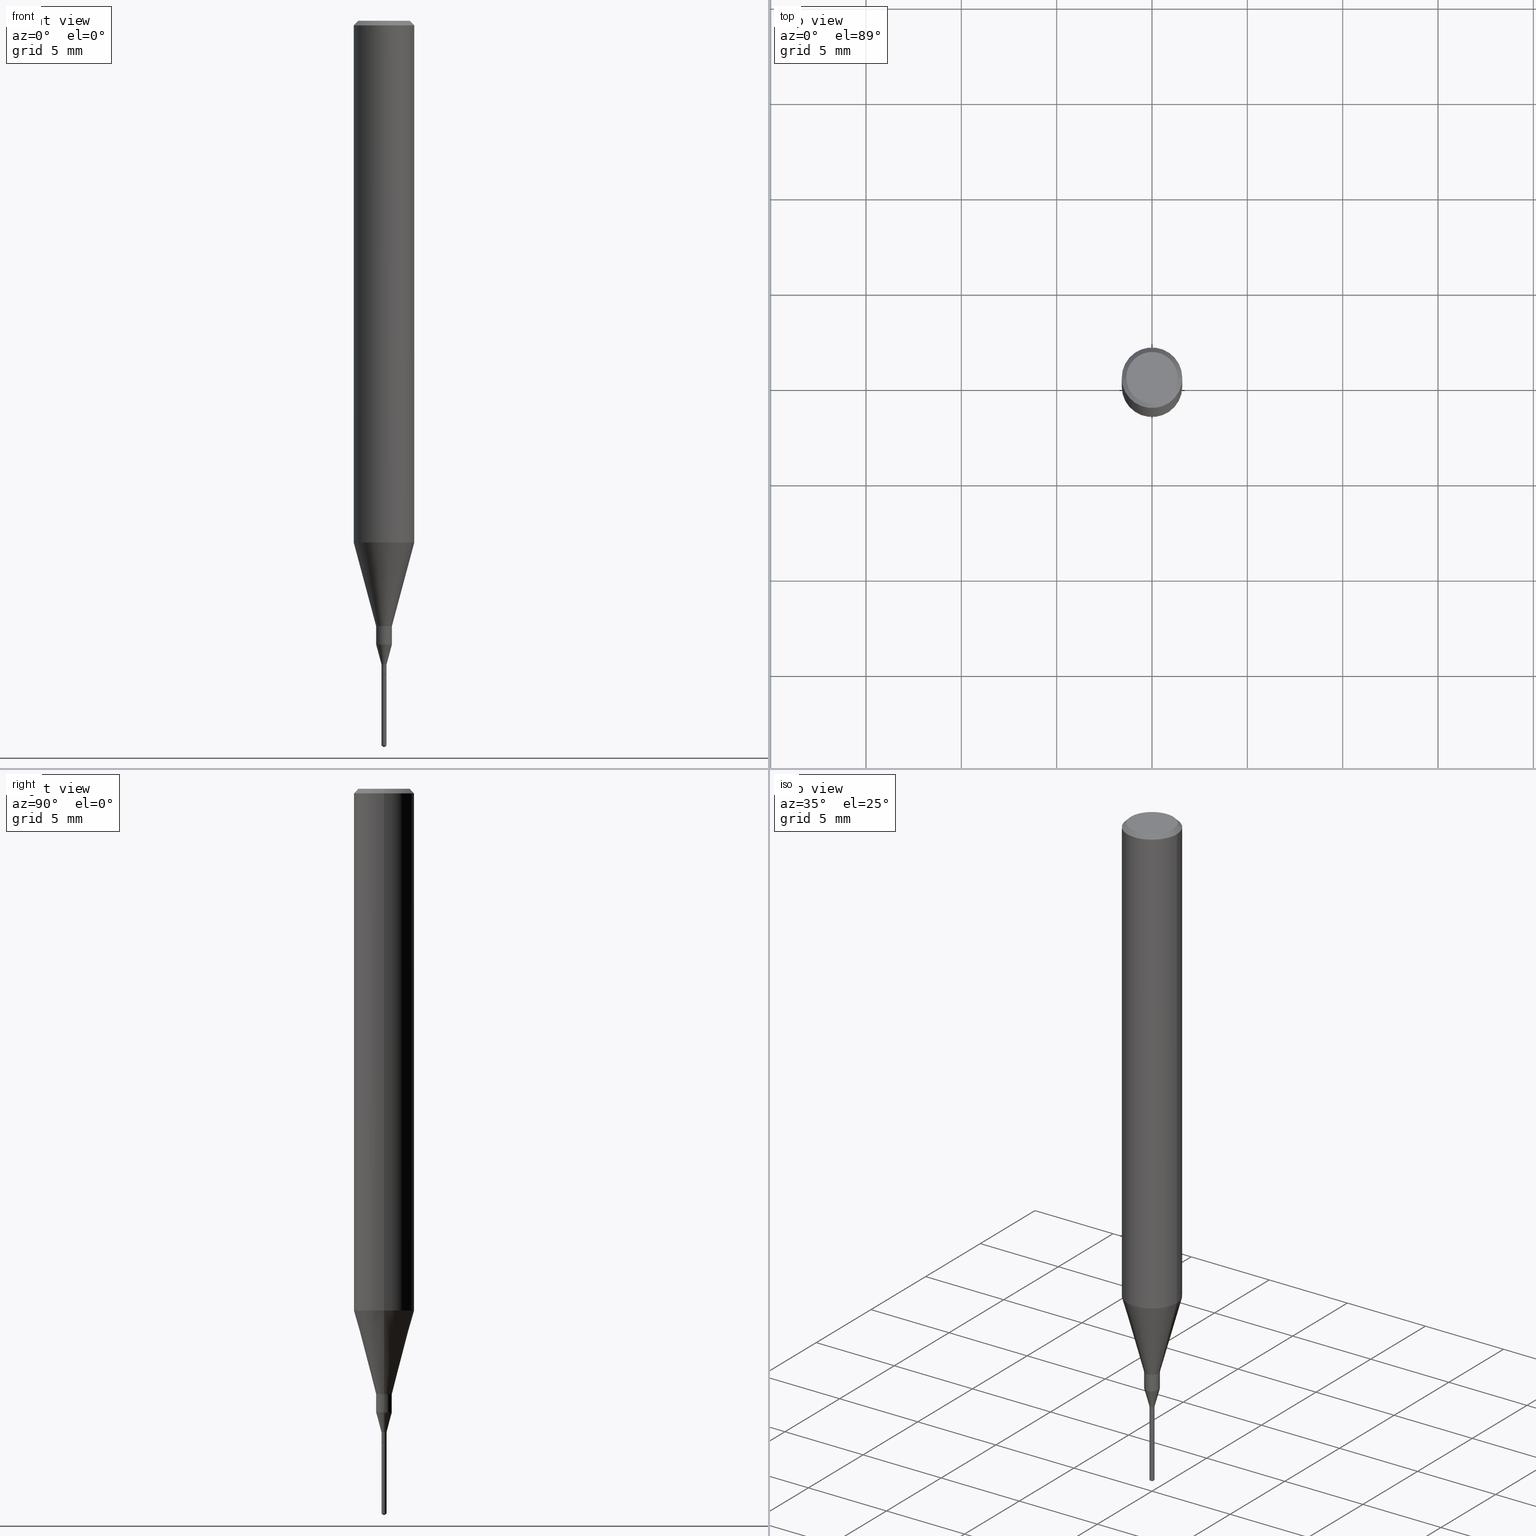
[diagram: canonical four-view strip — front | top / right | iso, engineering-drawing reading convention]
A machine part, canonical four-view strip (front | top / right | iso — engineering-drawing reading convention). The complete STEP part file that produces these views, byte-faithful:
ISO-10303-21;
HEADER;
FILE_DESCRIPTION (( 'STEP AP203' ),
    '1' );
FILE_NAME ('07260.STEP',
    '2024-04-19T13:30:29',
    ( '' ),
    ( '' ),
    'SwSTEP 2.0',
    'SolidWorks 2023',
    '' );
FILE_SCHEMA (( 'CONFIG_CONTROL_DESIGN' ));
ENDSEC;

DATA;
#1 =( NAMED_UNIT ( * ) SI_UNIT ( $, .STERADIAN. ) SOLID_ANGLE_UNIT ( ) );
#2 = EDGE_CURVE ( 'NONE', #54, #312, #493, .T. ) ;
#3 = ORIENTED_EDGE ( 'NONE', *, *, #508, .F. ) ;
#4 = DIRECTION ( 'NONE',  ( -0.2588190451025214611, 5.211531920934551042E-15, 0.9659258262890682012 ) ) ;
#5 = EDGE_CURVE ( 'NONE', #274, #185, #248, .T. ) ;
#6 = MECHANICAL_CONTEXT ( 'NONE', #104, 'mechanical' ) ;
#7 = ORIENTED_EDGE ( 'NONE', *, *, #427, .F. ) ;
#8 = AXIS2_PLACEMENT_3D ( 'NONE', #480, #213, #121 ) ;
#9 = CONICAL_SURFACE ( 'NONE', #433, 0.06250000000000000000, 0.7853981633974453924 ) ;
#10 = ADVANCED_FACE ( 'NONE', ( #339 ), #87, .T. ) ;
#11 = COORDINATED_UNIVERSAL_TIME_OFFSET ( 5, 0, .BEHIND. ) ;
#12 = ORIENTED_EDGE ( 'NONE', *, *, #84, .F. ) ;
#13 = DIRECTION ( 'NONE',  ( 1.000000000000000000, -6.982962677686274599E-15, 0.000000000000000000 ) ) ;
#14 = APPROVAL_STATUS ( 'not_yet_approved' ) ;
#15 = ORIENTED_EDGE ( 'NONE', *, *, #52, .T. ) ;
#16 = FACE_OUTER_BOUND ( 'NONE', #313, .T. ) ;
#17 = DIRECTION ( 'NONE',  ( -2.445468806185136597E-29, 3.491481338843145583E-15, 1.000000000000000000 ) ) ;
#18 = ADVANCED_FACE ( 'NONE', ( #239 ), #201, .T. ) ;
#19 = CARTESIAN_POINT ( 'NONE',  ( 0.000000000000000000, 0.000000000000000000, 0.000000000000000000 ) ) ;
#20 = ORIENTED_EDGE ( 'NONE', *, *, #338, .F. ) ;
#21 = DIRECTION ( 'NONE',  ( 0.7071067811866248443, -2.468850131083066826E-15, 0.7071067811864701902 ) ) ;
#22 = ADVANCED_FACE ( 'NONE', ( #566 ), #64, .T. ) ;
#23 = ADVANCED_FACE ( 'NONE', ( #108 ), #92, .T. ) ;
#24 = CIRCLE ( 'NONE', #552, 0.005250000000000001193 ) ;
#25 = CARTESIAN_POINT ( 'NONE',  ( 0.01625000000000000056, -4.610317599582291030E-15, -1.287947441116742864 ) ) ;
#26 = CARTESIAN_POINT ( 'NONE',  ( -0.06250000000000012490, -3.317607122755211895E-15, -1.077392650149939346 ) ) ;
#27 = ORIENTED_EDGE ( 'NONE', *, *, #532, .T. ) ;
#28 = CARTESIAN_POINT ( 'NONE',  ( -0.01625000000000000056, -4.381381261508872379E-15, -1.287947441116742864 ) ) ;
#29 = PLANE ( 'NONE',  #443 ) ;
#30 = ORIENTED_EDGE ( 'NONE', *, *, #294, .T. ) ;
#31 = ORIENTED_EDGE ( 'NONE', *, *, #371, .F. ) ;
#32 = DIRECTION ( 'NONE',  ( -2.445468806185136597E-29, 3.491481338843145583E-15, 1.000000000000000000 ) ) ;
#33 = CONICAL_SURFACE ( 'NONE', #205, 0.004750000000000000749, 0.7853981633975576360 ) ;
#34 = CIRCLE ( 'NONE', #180, 0.005250000000000001193 ) ;
#35 = DIRECTION ( 'NONE',  ( -2.445468806185136597E-29, 3.491481338843145583E-15, 1.000000000000000000 ) ) ;
#36 = DIRECTION ( 'NONE',  ( 1.000000000000000000, -6.982962677686264344E-15, 0.000000000000000000 ) ) ;
#37 = PLANE ( 'NONE',  #263 ) ;
#38 = LINE ( 'NONE', #442, #252 ) ;
#39 = EDGE_CURVE ( 'NONE', #258, #584, #432, .T. ) ;
#40 = AXIS2_PLACEMENT_3D ( 'NONE', #153, #335, #291 ) ;
#41 = CIRCLE ( 'NONE', #456, 0.01625000000000000056 ) ;
#42 = DIRECTION ( 'NONE',  ( -6.982962677686265133E-15, -1.000000000000000000, 0.000000000000000000 ) ) ;
#43 = APPLICATION_PROTOCOL_DEFINITION ( 'international standard', 'config_control_design', 1994, #104 ) ;
#44 = DIRECTION ( 'NONE',  ( -2.449828643397946418E-29, 3.485237803807878340E-15, 1.000000000000000000 ) ) ;
#45 = CIRCLE ( 'NONE', #314, 0.005250000000000100940 ) ;
#46 = AXIS2_PLACEMENT_3D ( 'NONE', #177, #266, #457 ) ;
#47 = CARTESIAN_POINT ( 'NONE',  ( 0.05312499999999999861, -4.129888592719939842E-16, -5.787680772767651417E-18 ) ) ;
#48 = LINE ( 'NONE', #236, #512 ) ;
#49 = CALENDAR_DATE ( 2024, 19, 4 ) ;
#50 = DIRECTION ( 'NONE',  ( -6.982962677686265133E-15, -1.000000000000000000, 0.000000000000000000 ) ) ;
#51 = CARTESIAN_POINT ( 'NONE',  ( 0.000000000000000000, 0.000000000000000000, 0.000000000000000000 ) ) ;
#52 = EDGE_CURVE ( 'NONE', #295, #356, #420, .T. ) ;
#53 = PERSON_AND_ORGANIZATION ( #408, #453 ) ;
#54 = VERTEX_POINT ( 'NONE', #207 ) ;
#55 = DIRECTION ( 'NONE',  ( -2.445468806185136597E-29, 3.491481338843145583E-15, 1.000000000000000000 ) ) ;
#56 = FACE_OUTER_BOUND ( 'NONE', #573, .T. ) ;
#57 = AXIS2_PLACEMENT_3D ( 'NONE', #230, #221, #353 ) ;
#58 = PERSON_AND_ORGANIZATION ( #408, #453 ) ;
#59 = CARTESIAN_POINT ( 'NONE',  ( 0.005250000000000054970, -3.666055405785328825E-17, 2.559992807292892898E-31 ) ) ;
#60 = DIRECTION ( 'NONE',  ( 1.000000000000000000, -6.982962677686264344E-15, 0.000000000000000000 ) ) ;
#61 = VERTEX_POINT ( 'NONE', #383 ) ;
#62 = DIRECTION ( 'NONE',  ( 0.2588190451025216277, 1.565188264969619995E-15, 0.9659258262890679791 ) ) ;
#63 = ADVANCED_FACE ( 'NONE', ( #56 ), #33, .T. ) ;
#64 = CYLINDRICAL_SURFACE ( 'NONE', #66, 0.06250000000000006939 ) ;
#65 = LOCAL_TIME ( 9, 30, 29.00000000000000000, #192 ) ;
#66 = AXIS2_PLACEMENT_3D ( 'NONE', #51, #249, #286 ) ;
#67 = AXIS2_PLACEMENT_3D ( 'NONE', #403, #360, #494 ) ;
#68 = EDGE_LOOP ( 'NONE', ( #183, #557, #542 ) ) ;
#69 = CARTESIAN_POINT ( 'NONE',  ( 3.301382888349935078E-29, -4.713499807438246596E-15, -1.350000000000000089 ) ) ;
#70 = CARTESIAN_POINT ( 'NONE',  ( 0.01624999999999999709, -1.134731435124018242E-16, 7.923787260668394963E-31 ) ) ;
#71 = ORIENTED_EDGE ( 'NONE', *, *, #189, .F. ) ;
#72 = ORIENTED_EDGE ( 'NONE', *, *, #447, .F. ) ;
#73 = CYLINDRICAL_SURFACE ( 'NONE', #401, 0.005250000000000001193 ) ;
#74 = APPROVAL ( #470, 'UNSPECIFIED' ) ;
#75 = FACE_OUTER_BOUND ( 'NONE', #300, .T. ) ;
#76 = CIRCLE ( 'NONE', #411, 0.01625000000000000056 ) ;
#77 = VECTOR ( 'NONE', #562, 39.37007874015747433 ) ;
#78 = CARTESIAN_POINT ( 'NONE',  ( 3.149635291256962736E-29, -4.496844456069888565E-15, -1.287947441116742864 ) ) ;
#79 = DIRECTION ( 'NONE',  ( -2.445468806185136597E-29, 3.491481338843145583E-15, 1.000000000000000000 ) ) ;
#80 = CARTESIAN_POINT ( 'NONE',  ( -0.005250000000000100940, -4.638662889418277990E-15, -1.328999999999999959 ) ) ;
#81 = EDGE_CURVE ( 'NONE', #292, #503, #545, .T. ) ;
#82 = LINE ( 'NONE', #70, #336 ) ;
#83 = ORIENTED_EDGE ( 'NONE', *, *, #294, .F. ) ;
#84 = EDGE_CURVE ( 'NONE', #584, #258, #45, .T. ) ;
#85 = CYLINDRICAL_SURFACE ( 'NONE', #57, 0.005250000000000054970 ) ;
#86 = ORIENTED_EDGE ( 'NONE', *, *, #380, .F. ) ;
#87 = CONICAL_SURFACE ( 'NONE', #580, 65.52281426576405465, 1.029744258676625002 ) ;
#88 =( CONVERSION_BASED_UNIT ( 'INCH', #455 ) LENGTH_UNIT ( ) NAMED_UNIT ( #473 ) );
#89 = VECTOR ( 'NONE', #479, 39.37007874015748143 ) ;
#90 = FACE_OUTER_BOUND ( 'NONE', #130, .T. ) ;
#91 = DIRECTION ( 'NONE',  ( -0.2588190451025216277, 5.211531920934551831E-15, 0.9659258262890679791 ) ) ;
#92 = CONICAL_SURFACE ( 'NONE', #491, 0.06250000000000012490, 0.2617993877991501295 ) ;
#93 = VECTOR ( 'NONE', #91, 39.37007874015748143 ) ;
#94 = SECURITY_CLASSIFICATION_LEVEL ( 'unclassified' ) ;
#95 = DIRECTION ( 'NONE',  ( -2.445468806185136597E-29, 3.491481338843145583E-15, 1.000000000000000000 ) ) ;
#96 = ADVANCED_FACE ( 'NONE', ( #172 ), #29, .F. ) ;
#97 = PERSON_AND_ORGANIZATION ( #408, #453 ) ;
#98 = CARTESIAN_POINT ( 'NONE',  ( 7.076796394983739835E-47, -1.010378970665454992E-32, -2.893840386385196200E-18 ) ) ;
#99 = DIRECTION ( 'NONE',  ( -2.445468806185136597E-29, 3.491481338843145583E-15, 1.000000000000000000 ) ) ;
#100 = EDGE_CURVE ( 'NONE', #202, #303, #578, .T. ) ;
#101 = EDGE_CURVE ( 'NONE', #503, #292, #223, .T. ) ;
#102 = PERSON_AND_ORGANIZATION ( #408, #453 ) ;
#103 = DIRECTION ( 'NONE',  ( 1.000000000000000000, -6.982962677686258033E-15, 0.000000000000000000 ) ) ;
#104 = APPLICATION_CONTEXT ( 'configuration controlled 3d designs of mechanical parts and assemblies' ) ;
#105 = PERSON_AND_ORGANIZATION ( #408, #453 ) ;
#106 = ADVANCED_FACE ( 'NONE', ( #541 ), #499, .T. ) ;
#107 = FACE_OUTER_BOUND ( 'NONE', #579, .T. ) ;
#108 = FACE_OUTER_BOUND ( 'NONE', #381, .T. ) ;
#109 = ADVANCED_BREP_SHAPE_REPRESENTATION ( '07260', ( #407, #405, #370 ), #345 ) ;
#110 = DIRECTION ( 'NONE',  ( -6.982962677686265922E-15, -1.000000000000000000, 0.000000000000000000 ) ) ;
#111 = ORIENTED_EDGE ( 'NONE', *, *, #389, .T. ) ;
#112 = CARTESIAN_POINT ( 'NONE',  ( 3.301382888349935078E-29, -4.713499807438246596E-15, -1.350000000000000089 ) ) ;
#113 = ORIENTED_EDGE ( 'NONE', *, *, #174, .F. ) ;
#114 = FACE_OUTER_BOUND ( 'NONE', #346, .T. ) ;
#115 = ORIENTED_EDGE ( 'NONE', *, *, #397, .F. ) ;
#116 = FACE_OUTER_BOUND ( 'NONE', #220, .T. ) ;
#117 = DIRECTION ( 'NONE',  ( 1.000000000000000000, -6.982962677686267499E-15, 4.876176775795935232E-29 ) ) ;
#118 = EDGE_CURVE ( 'NONE', #340, #303, #262, .T. ) ;
#119 = CARTESIAN_POINT ( 'NONE',  ( 0.000000000000000000, 0.000000000000000000, 0.000000000000000000 ) ) ;
#120 = DIRECTION ( 'NONE',  ( -5.985567269335837150E-15, -0.8571673007020953472, 0.5150380749100824662 ) ) ;
#121 = DIRECTION ( 'NONE',  ( 1.000000000000000000, -6.982962677686266711E-15, 4.875930095424100059E-29 ) ) ;
#122 = ORIENTED_EDGE ( 'NONE', *, *, #189, .T. ) ;
#123 = AXIS2_PLACEMENT_3D ( 'NONE', #194, #462, #280 ) ;
#124 = AXIS2_PLACEMENT_3D ( 'NONE', #438, #162, #290 ) ;
#125 = DIRECTION ( 'NONE',  ( -0.7071067811865454633, 2.468850131082235367E-15, -0.7071067811865495711 ) ) ;
#126 = DIRECTION ( 'NONE',  ( -2.445468806185136597E-29, 3.491481338843145583E-15, 1.000000000000000000 ) ) ;
#127 = ADVANCED_FACE ( 'NONE', ( #440 ), #73, .T. ) ;
#128 = CARTESIAN_POINT ( 'NONE',  ( -0.05312499999999999861, 3.873362110279099094E-16, -5.787680772773044021E-18 ) ) ;
#129 = ORIENTED_EDGE ( 'NONE', *, *, #100, .T. ) ;
#130 = EDGE_LOOP ( 'NONE', ( #396, #111, #350, #214 ) ) ;
#131 = CIRCLE ( 'NONE', #145, 0.06250000000000012490 ) ;
#132 = DIRECTION ( 'NONE',  ( 1.000000000000000000, -6.982962677686264344E-15, 0.000000000000000000 ) ) ;
#133 = ORIENTED_EDGE ( 'NONE', *, *, #380, .T. ) ;
#134 = AXIS2_PLACEMENT_3D ( 'NONE', #378, #568, #50 ) ;
#135 = CC_DESIGN_PERSON_AND_ORGANIZATION_ASSIGNMENT ( #414, #513, ( #154 ) ) ;
#136 =( LENGTH_UNIT ( ) NAMED_UNIT ( * ) SI_UNIT ( $, .METRE. ) );
#137 = PERSON_AND_ORGANIZATION_ROLE ( 'creator' ) ;
#138 = ORIENTED_EDGE ( 'NONE', *, *, #118, .T. ) ;
#139 = CARTESIAN_POINT ( 'NONE',  ( -3.666055405781629191E-17, -0.005250000000005225313, -1.496845481750105122 ) ) ;
#140 = EDGE_CURVE ( 'NONE', #268, #295, #38, .T. ) ;
#141 = ORIENTED_EDGE ( 'NONE', *, *, #508, .T. ) ;
#142 = EDGE_CURVE ( 'NONE', #519, #255, #240, .T. ) ;
#143 = FACE_OUTER_BOUND ( 'NONE', #209, .T. ) ;
#144 = CC_DESIGN_APPROVAL ( #469, ( #154 ) ) ;
#145 = AXIS2_PLACEMENT_3D ( 'NONE', #536, #35, #399 ) ;
#146 = AXIS2_PLACEMENT_3D ( 'NONE', #417, #375, #110 ) ;
#147 = ORIENTED_EDGE ( 'NONE', *, *, #269, .T. ) ;
#148 = FACE_OUTER_BOUND ( 'NONE', #178, .T. ) ;
#149 = DIRECTION ( 'NONE',  ( -2.445468806185136597E-29, 3.491481338843145583E-15, 1.000000000000000000 ) ) ;
#150 = CYLINDRICAL_SURFACE ( 'NONE', #134, 0.005250000000000001193 ) ;
#151 = COORDINATED_UNIVERSAL_TIME_OFFSET ( 5, 0, .BEHIND. ) ;
#152 = DIRECTION ( 'NONE',  ( -2.445468806185136597E-29, 3.491481338843145583E-15, 1.000000000000000000 ) ) ;
#153 = CARTESIAN_POINT ( 'NONE',  ( 3.056836007731421306E-29, -4.364351673553932471E-15, -1.250000000000000000 ) ) ;
#154 = PRODUCT_DEFINITION_FORMATION_WITH_SPECIFIED_SOURCE ( 'ANY', '', #423, .NOT_KNOWN. ) ;
#155 = CC_DESIGN_DATE_AND_TIME_ASSIGNMENT ( #278, #319, ( #572 ) ) ;
#156 = CIRCLE ( 'NONE', #67, 0.004750000000000000749 ) ;
#157 = DIRECTION ( 'NONE',  ( -2.445468806185136877E-29, 3.491481338843145188E-15, 1.000000000000000000 ) ) ;
#158 = ORIENTED_EDGE ( 'NONE', *, *, #447, .T. ) ;
#159 = LINE ( 'NONE', #530, #89 ) ;
#160 = CARTESIAN_POINT ( 'NONE',  ( 2.292627005798581061E-31, -3.273263755165471417E-17, -0.009375000000000063838 ) ) ;
#161 = PRODUCT_DEFINITION_SHAPE ( 'NONE', 'NONE',  #572 ) ;
#162 = DIRECTION ( 'NONE',  ( 2.445468806185136597E-29, -3.491481338843145583E-15, -1.000000000000000000 ) ) ;
#163 = ORIENTED_EDGE ( 'NONE', *, *, #101, .F. ) ;
#164 = CARTESIAN_POINT ( 'NONE',  ( 3.301382888349935078E-29, -4.713499807438246596E-15, -1.350000000000000089 ) ) ;
#165 = EDGE_CURVE ( 'NONE', #54, #274, #131, .T. ) ;
#166 = EDGE_LOOP ( 'NONE', ( #548, #190, #528, #31 ) ) ;
#167 = AXIS2_PLACEMENT_3D ( 'NONE', #575, #99, #281 ) ;
#168 = CIRCLE ( 'NONE', #146, 0.005249999999999999459 ) ;
#169 = EDGE_LOOP ( 'NONE', ( #229, #15, #477, #12 ) ) ;
#170 = LINE ( 'NONE', #257, #492 ) ;
#171 = ORIENTED_EDGE ( 'NONE', *, *, #228, .F. ) ;
#172 = FACE_OUTER_BOUND ( 'NONE', #428, .T. ) ;
#173 = ORIENTED_EDGE ( 'NONE', *, *, #81, .F. ) ;
#174 = EDGE_CURVE ( 'NONE', #312, #185, #465, .T. ) ;
#175 = EDGE_CURVE ( 'NONE', #471, #496, #76, .T. ) ;
#176 =( NAMED_UNIT ( * ) PLANE_ANGLE_UNIT ( ) SI_UNIT ( $, .RADIAN. ) );
#177 = CARTESIAN_POINT ( 'NONE',  ( 3.301382888349935078E-29, -4.713499807438246596E-15, -1.350000000000000089 ) ) ;
#178 = EDGE_LOOP ( 'NONE', ( #317, #391, #163, #171 ) ) ;
#179 = AXIS2_PLACEMENT_3D ( 'NONE', #264, #126, #308 ) ;
#180 = AXIS2_PLACEMENT_3D ( 'NONE', #354, #436, #296 ) ;
#181 = CARTESIAN_POINT ( 'NONE',  ( 3.301382888349935078E-29, -4.713499807438246596E-15, -1.350000000000000089 ) ) ;
#182 = CARTESIAN_POINT ( 'NONE',  ( 3.730349362744188864E-17, 0.005249999999995287082, -1.350000000000000089 ) ) ;
#183 = ORIENTED_EDGE ( 'NONE', *, *, #100, .F. ) ;
#184 = FACE_OUTER_BOUND ( 'NONE', #366, .T. ) ;
#185 = VERTEX_POINT ( 'NONE', #341 ) ;
#186 = VECTOR ( 'NONE', #21, 39.37007874015748143 ) ;
#187 = DATE_AND_TIME ( #288, #590 ) ;
#188 = CC_DESIGN_PERSON_AND_ORGANIZATION_ASSIGNMENT ( #58, #376, ( #510 ) ) ;
#189 = EDGE_CURVE ( 'NONE', #255, #519, #402, .T. ) ;
#190 = ORIENTED_EDGE ( 'NONE', *, *, #538, .T. ) ;
#191 = CARTESIAN_POINT ( 'NONE',  ( -0.01624999999999999709, -4.315134870250894333E-15, -1.250000000000000000 ) ) ;
#192 = COORDINATED_UNIVERSAL_TIME_OFFSET ( 5, 0, .BEHIND. ) ;
#193 = CARTESIAN_POINT ( 'NONE',  ( 0.06250000000000000000, -4.691678049070463404E-16, -0.009375000000000063838 ) ) ;
#194 = CARTESIAN_POINT ( 'NONE',  ( 0.000000000000000000, 0.000000000000000000, 0.000000000000000000 ) ) ;
#195 = VECTOR ( 'NONE', #372, 39.37007874015748143 ) ;
#196 = APPROVAL_PERSON_ORGANIZATION ( #418, #74, #526 ) ;
#197 = DIRECTION ( 'NONE',  ( -1.000000000000000000, 6.982962677686265922E-15, -4.876176775795935793E-29 ) ) ;
#198 = ORIENTED_EDGE ( 'NONE', *, *, #118, .F. ) ;
#199 = APPLICATION_CONTEXT ( 'configuration controlled 3d designs of mechanical parts and assemblies' ) ;
#200 = CARTESIAN_POINT ( 'NONE',  ( 0.01625000000000000056, -4.610317599582291030E-15, -1.287947441116742864 ) ) ;
#201 = CYLINDRICAL_SURFACE ( 'NONE', #123, 0.01624999999999999709 ) ;
#202 = VERTEX_POINT ( 'NONE', #495 ) ;
#203 = CARTESIAN_POINT ( 'NONE',  ( 0.06250000000000012490, -4.198131499960668153E-15, -1.077392650149939346 ) ) ;
#204 = DIRECTION ( 'NONE',  ( -2.445468806185136597E-29, 3.491481338843145583E-15, 1.000000000000000000 ) ) ;
#205 = AXIS2_PLACEMENT_3D ( 'NONE', #112, #426, #379 ) ;
#206 = VECTOR ( 'NONE', #244, 39.37007874015748143 ) ;
#207 = CARTESIAN_POINT ( 'NONE',  ( 0.06250000000000012490, -4.198131499960668153E-15, -1.077392650149939346 ) ) ;
#208 = APPROVAL ( #364, 'UNSPECIFIED' ) ;
#209 = EDGE_LOOP ( 'NONE', ( #86, #450, #30, #20 ) ) ;
#210 = ADVANCED_FACE ( 'NONE', ( #114 ), #525, .T. ) ;
#211 = DIRECTION ( 'NONE',  ( -2.445468806185136597E-29, 3.491481338843145583E-15, 1.000000000000000000 ) ) ;
#212 = ORIENTED_EDGE ( 'NONE', *, *, #505, .T. ) ;
#213 = DIRECTION ( 'NONE',  ( -2.445468806185136597E-29, 3.491481338843145583E-15, 1.000000000000000000 ) ) ;
#214 = ORIENTED_EDGE ( 'NONE', *, *, #416, .F. ) ;
#215 = ORIENTED_EDGE ( 'NONE', *, *, #532, .F. ) ;
#216 = DIRECTION ( 'NONE',  ( -2.445468806185136597E-29, 3.491481338843145583E-15, 1.000000000000000000 ) ) ;
#217 = ORIENTED_EDGE ( 'NONE', *, *, #5, .T. ) ;
#218 = EDGE_CURVE ( 'NONE', #413, #539, #34, .T. ) ;
#219 = FACE_OUTER_BOUND ( 'NONE', #169, .T. ) ;
#220 = EDGE_LOOP ( 'NONE', ( #563, #217, #113, #410 ) ) ;
#221 = DIRECTION ( 'NONE',  ( -2.445468806185136597E-29, 3.491481338843145583E-15, 1.000000000000000000 ) ) ;
#222 = DIRECTION ( 'NONE',  ( -2.449828643397946418E-29, 3.485237803807878340E-15, 1.000000000000000000 ) ) ;
#223 = CIRCLE ( 'NONE', #179, 0.01624999999999999709 ) ;
#224 = CC_DESIGN_SECURITY_CLASSIFICATION ( #510, ( #154 ) ) ;
#225 = CONICAL_SURFACE ( 'NONE', #46, 0.004750000000000000749, 0.7853981633975576360 ) ;
#226 = AXIS2_PLACEMENT_3D ( 'NONE', #387, #488, #385 ) ;
#227 = DIRECTION ( 'NONE',  ( 1.000000000000000000, 0.000000000000000000, 0.000000000000000000 ) ) ;
#228 = EDGE_CURVE ( 'NONE', #471, #503, #82, .T. ) ;
#229 = ORIENTED_EDGE ( 'NONE', *, *, #389, .F. ) ;
#230 = CARTESIAN_POINT ( 'NONE',  ( 0.000000000000000000, 0.000000000000000000, 0.000000000000000000 ) ) ;
#231 = PERSON_AND_ORGANIZATION_ROLE ( 'design_owner' ) ;
#232 = ORIENTED_EDGE ( 'NONE', *, *, #140, .T. ) ;
#233 = CONICAL_SURFACE ( 'NONE', #242, 0.01625000000000000056, 0.2617993877991502960 ) ;
#234 = EDGE_CURVE ( 'NONE', #202, #340, #170, .T. ) ;
#235 = CARTESIAN_POINT ( 'NONE',  ( 0.005250000000000100940, -4.676839253380394232E-15, -1.328999999999999959 ) ) ;
#236 = CARTESIAN_POINT ( 'NONE',  ( -0.01624999999999999709, 1.154631945610162595E-16, -7.993269521664220284E-31 ) ) ;
#237 = DATE_AND_TIME ( #49, #251 ) ;
#238 = FACE_OUTER_BOUND ( 'NONE', #352, .T. ) ;
#239 = FACE_OUTER_BOUND ( 'NONE', #246, .T. ) ;
#240 = CIRCLE ( 'NONE', #8, 0.05312499999999999861 ) ;
#241 = PLANE ( 'NONE',  #270 ) ;
#242 = AXIS2_PLACEMENT_3D ( 'NONE', #78, #445, #256 ) ;
#243 = APPROVAL_ROLE ( '' ) ;
#244 = DIRECTION ( 'NONE',  ( 0.7071067811865454633, -7.319954787623248157E-15, -0.7071067811865495711 ) ) ;
#245 = CARTESIAN_POINT ( 'NONE',  ( 3.250028043420046385E-29, -4.640178699322540290E-15, -1.328999999999999959 ) ) ;
#246 = EDGE_LOOP ( 'NONE', ( #115, #434, #534, #173 ) ) ;
#247 = DIRECTION ( 'NONE',  ( -2.445468806185136597E-29, 3.491481338843145583E-15, 1.000000000000000000 ) ) ;
#248 = LINE ( 'NONE', #331, #569 ) ;
#249 = DIRECTION ( 'NONE',  ( -2.445468806185136597E-29, 3.491481338843145583E-15, 1.000000000000000000 ) ) ;
#250 = ADVANCED_FACE ( 'NONE', ( #219 ), #587, .T. ) ;
#251 = LOCAL_TIME ( 9, 30, 29.00000000000000000, #325 ) ;
#252 = VECTOR ( 'NONE', #449, 39.37007874015748143 ) ;
#253 = VECTOR ( 'NONE', #125, 39.37007874015748143 ) ;
#254 = ADVANCED_FACE ( 'NONE', ( #75 ), #225, .T. ) ;
#255 = VERTEX_POINT ( 'NONE', #47 ) ;
#256 = DIRECTION ( 'NONE',  ( 1.000000000000000000, -6.982962677686258033E-15, 0.000000000000000000 ) ) ;
#257 = CARTESIAN_POINT ( 'NONE',  ( 3.662971404622334007E-29, -5.244714250307038079E-15, -1.500000000000000222 ) ) ;
#258 = VERTEX_POINT ( 'NONE', #235 ) ;
#259 = DIRECTION ( 'NONE',  ( -6.982962677686265133E-15, -1.000000000000000000, 0.000000000000000000 ) ) ;
#260 = ORIENTED_EDGE ( 'NONE', *, *, #39, .T. ) ;
#261 = DIRECTION ( 'NONE',  ( 6.090539988449671939E-15, 0.8571673007020987889, 0.5150380749100764710 ) ) ;
#262 = CIRCLE ( 'NONE', #511, 0.005249999999999999459 ) ;
#263 = AXIS2_PLACEMENT_3D ( 'NONE', #181, #309, #316 ) ;
#264 = CARTESIAN_POINT ( 'NONE',  ( 3.056836007731421306E-29, -4.364351673553932471E-15, -1.250000000000000000 ) ) ;
#265 = DIRECTION ( 'NONE',  ( 2.445468806185136597E-29, -3.491481338843145583E-15, -1.000000000000000000 ) ) ;
#266 = DIRECTION ( 'NONE',  ( -2.445468806185136597E-29, 3.491481338843145583E-15, 1.000000000000000000 ) ) ;
#267 = LINE ( 'NONE', #498, #582 ) ;
#268 = VERTEX_POINT ( 'NONE', #321 ) ;
#269 = EDGE_CURVE ( 'NONE', #303, #340, #168, .T. ) ;
#270 = AXIS2_PLACEMENT_3D ( 'NONE', #98, #461, #197 ) ;
#271 = LOCAL_TIME ( 9, 30, 29.00000000000000000, #151 ) ;
#272 = CARTESIAN_POINT ( 'NONE',  ( 0.000000000000000000, 0.000000000000000000, 0.000000000000000000 ) ) ;
#273 = DIRECTION ( 'NONE',  ( -2.445468806185136597E-29, 3.491481338843145583E-15, 1.000000000000000000 ) ) ;
#274 = VERTEX_POINT ( 'NONE', #26 ) ;
#275 = ADVANCED_FACE ( 'NONE', ( #576 ), #481, .T. ) ;
#276 = AXIS2_PLACEMENT_3D ( 'NONE', #327, #55, #13 ) ;
#277 = LINE ( 'NONE', #458, #195 ) ;
#278 = DATE_AND_TIME ( #365, #271 ) ;
#279 = DIRECTION ( 'NONE',  ( -2.445468806185136877E-29, 3.491481338843145188E-15, 1.000000000000000000 ) ) ;
#280 = DIRECTION ( 'NONE',  ( 1.000000000000000000, -6.982962677686267499E-15, 4.876176775795936353E-29 ) ) ;
#281 = DIRECTION ( 'NONE',  ( 1.000000000000000000, -6.982962677686274599E-15, 0.000000000000000000 ) ) ;
#282 = CALENDAR_DATE ( 2024, 19, 4 ) ;
#283 = ORIENTED_EDGE ( 'NONE', *, *, #142, .F. ) ;
#284 = AXIS2_PLACEMENT_3D ( 'NONE', #245, #149, #520 ) ;
#285 = LINE ( 'NONE', #509, #93 ) ;
#286 = DIRECTION ( 'NONE',  ( 1.000000000000000000, -6.982962677686266711E-15, 4.876176775795935793E-29 ) ) ;
#287 = CIRCLE ( 'NONE', #355, 0.06250000000000012490 ) ;
#288 = CALENDAR_DATE ( 2024, 19, 4 ) ;
#289 = ORIENTED_EDGE ( 'NONE', *, *, #318, .T. ) ;
#290 = DIRECTION ( 'NONE',  ( -1.000000000000000000, 6.982962677686266711E-15, 0.000000000000000000 ) ) ;
#291 = DIRECTION ( 'NONE',  ( 1.000000000000000000, -6.982962677686288799E-15, 0.000000000000000000 ) ) ;
#292 = VERTEX_POINT ( 'NONE', #191 ) ;
#293 = PRODUCT_RELATED_PRODUCT_CATEGORY ( 'detail', '', ( #423 ) ) ;
#294 = EDGE_CURVE ( 'NONE', #258, #471, #430, .T. ) ;
#295 = VERTEX_POINT ( 'NONE', #463 ) ;
#296 = DIRECTION ( 'NONE',  ( -6.982962677686265133E-15, -1.000000000000000000, 0.000000000000000000 ) ) ;
#297 = AXIS2_PLACEMENT_3D ( 'NONE', #585, #531, #446 ) ;
#298 = ORIENTED_EDGE ( 'NONE', *, *, #101, .T. ) ;
#299 = DIRECTION ( 'NONE',  ( 2.449828643397946138E-29, -3.485237803807878340E-15, -1.000000000000000000 ) ) ;
#300 = EDGE_LOOP ( 'NONE', ( #475, #342, #158, #437 ) ) ;
#301 = ORIENTED_EDGE ( 'NONE', *, *, #218, .F. ) ;
#302 = CARTESIAN_POINT ( 'NONE',  ( 0.000000000000000000, 0.000000000000000000, 0.000000000000000000 ) ) ;
#303 = VERTEX_POINT ( 'NONE', #558 ) ;
#304 = CARTESIAN_POINT ( 'NONE',  ( 3.149635291256962736E-29, -4.496844456069888565E-15, -1.287947441116742864 ) ) ;
#305 = AXIS2_PLACEMENT_3D ( 'NONE', #302, #211, #117 ) ;
#306 = DESIGN_CONTEXT ( 'detailed design', #199, 'design' ) ;
#307 = CARTESIAN_POINT ( 'NONE',  ( -3.666055405781988492E-17, -0.005250000000004714437, -1.350000000000000089 ) ) ;
#308 = DIRECTION ( 'NONE',  ( 1.000000000000000000, -6.982962677686288799E-15, 0.000000000000000000 ) ) ;
#309 = DIRECTION ( 'NONE',  ( -2.438088387897960049E-29, 3.491481338843145188E-15, 1.000000000000000000 ) ) ;
#310 = EDGE_LOOP ( 'NONE', ( #384, #129, #198 ) ) ;
#311 = CC_DESIGN_PERSON_AND_ORGANIZATION_ASSIGNMENT ( #521, #231, ( #423 ) ) ;
#312 = VERTEX_POINT ( 'NONE', #193 ) ;
#313 = EDGE_LOOP ( 'NONE', ( #358, #147, #141, #215 ) ) ;
#314 = AXIS2_PLACEMENT_3D ( 'NONE', #474, #204, #529 ) ;
#315 = VECTOR ( 'NONE', #44, 39.37007874015748143 ) ;
#316 = DIRECTION ( 'NONE',  ( 1.000000000000000000, -6.982962677686265922E-15, 4.876176775795935793E-29 ) ) ;
#317 = ORIENTED_EDGE ( 'NONE', *, *, #175, .T. ) ;
#318 = EDGE_CURVE ( 'NONE', #503, #54, #472, .T. ) ;
#319 = DATE_TIME_ROLE ( 'creation_date' ) ;
#320 = DIRECTION ( 'NONE',  ( 1.000000000000000000, -6.982962677686267499E-15, 4.876176775795936353E-29 ) ) ;
#321 = CARTESIAN_POINT ( 'NONE',  ( -0.004750000000000000749, -4.677099800315530409E-15, -1.350000000000000089 ) ) ;
#322 = ORIENTED_EDGE ( 'NONE', *, *, #553, .T. ) ;
#323 = CIRCLE ( 'NONE', #390, 0.004750000000000000749 ) ;
#324 = LINE ( 'NONE', #59, #570 ) ;
#325 = COORDINATED_UNIVERSAL_TIME_OFFSET ( 5, 0, .BEHIND. ) ;
#326 = ORIENTED_EDGE ( 'NONE', *, *, #555, .F. ) ;
#327 = CARTESIAN_POINT ( 'NONE',  ( 3.300160153946842277E-29, -4.711754066768825092E-15, -1.349500000000000144 ) ) ;
#328 = ADVANCED_FACE ( 'NONE', ( #148 ), #382, .T. ) ;
#329 = PERSON_AND_ORGANIZATION_ROLE ( 'creator' ) ;
#330 = CARTESIAN_POINT ( 'NONE',  ( 2.292627005798581061E-31, -3.273263755165471417E-17, -0.009375000000000063838 ) ) ;
#331 = CARTESIAN_POINT ( 'NONE',  ( -0.06250000000000006939, 4.440892098500631092E-16, -3.074334431409319267E-30 ) ) ;
#332 = APPROVAL_DATE_TIME ( #561, #208 ) ;
#333 = ADVANCED_FACE ( 'NONE', ( #16 ), #150, .T. ) ;
#334 = DIRECTION ( 'NONE',  ( 1.000000000000000000, -6.982962677686266711E-15, 0.000000000000000000 ) ) ;
#335 = DIRECTION ( 'NONE',  ( -2.445468806185136597E-29, 3.491481338843145583E-15, 1.000000000000000000 ) ) ;
#336 = VECTOR ( 'NONE', #583, 39.37007874015748143 ) ;
#337 = ORIENTED_EDGE ( 'NONE', *, *, #357, .F. ) ;
#338 = EDGE_CURVE ( 'NONE', #496, #471, #41, .T. ) ;
#339 = FACE_OUTER_BOUND ( 'NONE', #310, .T. ) ;
#340 = VERTEX_POINT ( 'NONE', #139 ) ;
#341 = CARTESIAN_POINT ( 'NONE',  ( -0.06250000000000000000, -1.453125275228401137E-15, -0.009375000000000063838 ) ) ;
#342 = ORIENTED_EDGE ( 'NONE', *, *, #555, .T. ) ;
#343 = DIRECTION ( 'NONE',  ( 1.000000000000000000, -6.982962677686266711E-15, 0.000000000000000000 ) ) ;
#344 = CLOSED_SHELL ( 'NONE', ( #127, #10, #106, #333, #96 ) ) ;
#345 =( GEOMETRIC_REPRESENTATION_CONTEXT ( 3 ) GLOBAL_UNCERTAINTY_ASSIGNED_CONTEXT ( ( #349 ) ) GLOBAL_UNIT_ASSIGNED_CONTEXT ( ( #88, #176, #1 ) ) REPRESENTATION_CONTEXT ( 'NONE', 'WORKASPACE' ) );
#346 = EDGE_LOOP ( 'NONE', ( #487, #577, #289, #377 ) ) ;
#347 = DIRECTION ( 'NONE',  ( 1.000000000000000000, -6.982962677686177569E-15, 0.000000000000000000 ) ) ;
#348 = CARTESIAN_POINT ( 'NONE',  ( 3.661129155694912763E-29, -5.225291231752093132E-15, -1.496845481750105122 ) ) ;
#349 = UNCERTAINTY_MEASURE_WITH_UNIT (LENGTH_MEASURE( 1.000000000000000082E-05 ), #88, 'distance_accuracy_value', 'NONE');
#350 = ORIENTED_EDGE ( 'NONE', *, *, #39, .F. ) ;
#351 = CARTESIAN_POINT ( 'NONE',  ( 3.674846187787069844E-29, -5.227856705711817904E-15, -1.500000000000000222 ) ) ;
#352 = EDGE_LOOP ( 'NONE', ( #452, #122 ) ) ;
#353 = DIRECTION ( 'NONE',  ( 1.000000000000000000, -6.982962677686267499E-15, 4.876176775795935232E-29 ) ) ;
#354 = CARTESIAN_POINT ( 'NONE',  ( 3.301382888349935078E-29, -4.713499807438246596E-15, -1.350000000000000089 ) ) ;
#355 = AXIS2_PLACEMENT_3D ( 'NONE', #543, #273, #132 ) ;
#356 = VERTEX_POINT ( 'NONE', #367 ) ;
#357 = EDGE_CURVE ( 'NONE', #255, #312, #422, .T. ) ;
#358 = ORIENTED_EDGE ( 'NONE', *, *, #482, .F. ) ;
#359 = ORIENTED_EDGE ( 'NONE', *, *, #490, .F. ) ;
#360 = DIRECTION ( 'NONE',  ( -2.445468806185136597E-29, 3.491481338843145583E-15, 1.000000000000000000 ) ) ;
#361 = AXIS2_PLACEMENT_3D ( 'NONE', #160, #79, #343 ) ;
#362 = AXIS2_PLACEMENT_3D ( 'NONE', #19, #419, #320 ) ;
#363 = LINE ( 'NONE', #307, #315 ) ;
#364 = APPROVAL_STATUS ( 'not_yet_approved' ) ;
#365 = CALENDAR_DATE ( 2024, 19, 4 ) ;
#366 = EDGE_LOOP ( 'NONE', ( #71, #441, #497, #514 ) ) ;
#367 = CARTESIAN_POINT ( 'NONE',  ( 0.005250000000000009000, -4.748414620826678245E-15, -1.349500000000000144 ) ) ;
#368 = CIRCLE ( 'NONE', #451, 0.06250000000000000000 ) ;
#369 = CALENDAR_DATE ( 2024, 19, 4 ) ;
#370 = AXIS2_PLACEMENT_3D ( 'NONE', #272, #454, #227 ) ;
#371 = EDGE_CURVE ( 'NONE', #185, #312, #368, .T. ) ;
#372 = DIRECTION ( 'NONE',  ( -2.445468806185136877E-29, 3.491481338843145188E-15, 1.000000000000000000 ) ) ;
#373 = LINE ( 'NONE', #565, #186 ) ;
#374 = DIRECTION ( 'NONE',  ( -2.445468806185136877E-29, 3.491481338843145188E-15, 1.000000000000000000 ) ) ;
#375 = DIRECTION ( 'NONE',  ( -2.449828643397946418E-29, 3.485237803807878340E-15, 1.000000000000000000 ) ) ;
#376 = PERSON_AND_ORGANIZATION_ROLE ( 'classification_officer' ) ;
#377 = ORIENTED_EDGE ( 'NONE', *, *, #538, .F. ) ;
#378 = CARTESIAN_POINT ( 'NONE',  ( 3.301382888349935078E-29, -4.713499807438246596E-15, -1.350000000000000089 ) ) ;
#379 = DIRECTION ( 'NONE',  ( 1.000000000000000000, -6.982962677686177569E-15, 0.000000000000000000 ) ) ;
#380 = EDGE_CURVE ( 'NONE', #584, #496, #285, .T. ) ;
#381 = EDGE_LOOP ( 'NONE', ( #298, #212, #571, #386 ) ) ;
#382 = CYLINDRICAL_SURFACE ( 'NONE', #362, 0.01624999999999999709 ) ;
#383 = CARTESIAN_POINT ( 'NONE',  ( 0.004750000000000000749, -4.746668880157255952E-15, -1.350000000000000089 ) ) ;
#384 = ORIENTED_EDGE ( 'NONE', *, *, #234, .F. ) ;
#385 = DIRECTION ( 'NONE',  ( 1.000000000000000000, -6.982962677686266711E-15, 4.875930095424100059E-29 ) ) ;
#386 = ORIENTED_EDGE ( 'NONE', *, *, #318, .F. ) ;
#387 = CARTESIAN_POINT ( 'NONE',  ( 1.415359278996747967E-46, -2.020757941330909984E-32, -5.787680772770392401E-18 ) ) ;
#388 = CLOSED_SHELL ( 'NONE', ( #549, #502, #23, #328, #459, #517, #63, #574, #254, #250, #444, #18, #210, #22, #275, #439 ) ) ;
#389 = EDGE_CURVE ( 'NONE', #295, #584, #277, .T. ) ;
#390 = AXIS2_PLACEMENT_3D ( 'NONE', #69, #435, #347 ) ;
#391 = ORIENTED_EDGE ( 'NONE', *, *, #397, .T. ) ;
#392 = CARTESIAN_POINT ( 'NONE',  ( 3.301382888349935078E-29, -4.713499807438246596E-15, -1.350000000000000089 ) ) ;
#393 = EDGE_LOOP ( 'NONE', ( #337, #283, #322, #550 ) ) ;
#394 = DIRECTION ( 'NONE',  ( -2.449828643397946418E-29, 3.485237803807878340E-15, 1.000000000000000000 ) ) ;
#395 = DIRECTION ( 'NONE',  ( 1.000000000000000000, -6.982962677686258033E-15, 0.000000000000000000 ) ) ;
#396 = ORIENTED_EDGE ( 'NONE', *, *, #427, .T. ) ;
#397 = EDGE_CURVE ( 'NONE', #496, #292, #48, .T. ) ;
#398 = CARTESIAN_POINT ( 'NONE',  ( 0.01624999999999999709, -4.477824817066334148E-15, -1.250000000000000000 ) ) ;
#399 = DIRECTION ( 'NONE',  ( 1.000000000000000000, -6.982962677686264344E-15, 0.000000000000000000 ) ) ;
#400 = CC_DESIGN_APPROVAL ( #208, ( #510 ) ) ;
#401 = AXIS2_PLACEMENT_3D ( 'NONE', #392, #222, #259 ) ;
#402 = CIRCLE ( 'NONE', #226, 0.05312499999999999861 ) ;
#403 = CARTESIAN_POINT ( 'NONE',  ( 3.301382888349935078E-29, -4.713499807438246596E-15, -1.350000000000000089 ) ) ;
#404 = EDGE_LOOP ( 'NONE', ( #138, #586, #301, #3 ) ) ;
#405 = MANIFOLD_SOLID_BREP ( 'Body-Move/Copy2[2]', #388 ) ;
#406 = FACE_OUTER_BOUND ( 'NONE', #483, .T. ) ;
#407 = MANIFOLD_SOLID_BREP ( 'Body-Move/Copy2[1]', #344 ) ;
#408 = PERSON ( 'UNSPECIFIED', 'UNSPECIFIED', 'UNSPECIFIED', ('UNSPECIFIED'), ('UNSPECIFIED'), ('UNSPECIFIED') ) ;
#409 = LINE ( 'NONE', #554, #253 ) ;
#410 = ORIENTED_EDGE ( 'NONE', *, *, #2, .F. ) ;
#411 = AXIS2_PLACEMENT_3D ( 'NONE', #304, #216, #395 ) ;
#412 = APPROVAL_DATE_TIME ( #567, #74 ) ;
#413 = VERTEX_POINT ( 'NONE', #527 ) ;
#414 = PERSON_AND_ORGANIZATION ( #408, #453 ) ;
#415 = DIRECTION ( 'NONE',  ( -2.445468806185136877E-29, 3.491481338843145188E-15, 1.000000000000000000 ) ) ;
#416 = EDGE_CURVE ( 'NONE', #356, #258, #324, .T. ) ;
#417 = CARTESIAN_POINT ( 'NONE',  ( 3.661129155694912763E-29, -5.225291231752093132E-15, -1.496845481750105122 ) ) ;
#418 = PERSON_AND_ORGANIZATION ( #408, #453 ) ;
#419 = DIRECTION ( 'NONE',  ( -2.445468806185136597E-29, 3.491481338843145583E-15, 1.000000000000000000 ) ) ;
#420 = CIRCLE ( 'NONE', #167, 0.005250000000000009000 ) ;
#421 = CONICAL_SURFACE ( 'NONE', #500, 0.01625000000000000056, 0.2617993877991502960 ) ;
#422 = LINE ( 'NONE', #522, #206 ) ;
#423 = PRODUCT ( '07260', '07260', '', ( #6 ) ) ;
#424 = APPROVAL_ROLE ( '' ) ;
#425 = CARTESIAN_POINT ( 'NONE',  ( 3.149635291256962736E-29, -4.496844456069888565E-15, -1.287947441116742864 ) ) ;
#426 = DIRECTION ( 'NONE',  ( -2.445468806185136597E-29, 3.491481338843145583E-15, 1.000000000000000000 ) ) ;
#427 = EDGE_CURVE ( 'NONE', #356, #295, #466, .T. ) ;
#428 = EDGE_LOOP ( 'NONE', ( #486, #27 ) ) ;
#429 = CC_DESIGN_PERSON_AND_ORGANIZATION_ASSIGNMENT ( #102, #137, ( #154 ) ) ;
#430 = LINE ( 'NONE', #200, #559 ) ;
#431 = DIRECTION ( 'NONE',  ( -2.449828643397946418E-29, 3.485237803807878340E-15, 1.000000000000000000 ) ) ;
#432 = CIRCLE ( 'NONE', #284, 0.005250000000000100940 ) ;
#433 = AXIS2_PLACEMENT_3D ( 'NONE', #448, #265, #589 ) ;
#434 = ORIENTED_EDGE ( 'NONE', *, *, #338, .T. ) ;
#435 = DIRECTION ( 'NONE',  ( -2.445468806185136597E-29, 3.491481338843145583E-15, 1.000000000000000000 ) ) ;
#436 = DIRECTION ( 'NONE',  ( -2.449828643397946418E-29, 3.485237803807878340E-15, 1.000000000000000000 ) ) ;
#437 = ORIENTED_EDGE ( 'NONE', *, *, #52, .F. ) ;
#438 = CARTESIAN_POINT ( 'NONE',  ( 2.292627005798581061E-31, -3.273263755165471417E-17, -0.009375000000000063838 ) ) ;
#439 = ADVANCED_FACE ( 'NONE', ( #238 ), #241, .F. ) ;
#440 = FACE_OUTER_BOUND ( 'NONE', #404, .T. ) ;
#441 = ORIENTED_EDGE ( 'NONE', *, *, #357, .T. ) ;
#442 = CARTESIAN_POINT ( 'NONE',  ( -0.004750000000000000749, -4.679749027489641610E-15, -1.350000000000000089 ) ) ;
#443 = AXIS2_PLACEMENT_3D ( 'NONE', #164, #299, #489 ) ;
#444 = ADVANCED_FACE ( 'NONE', ( #143 ), #421, .T. ) ;
#445 = DIRECTION ( 'NONE',  ( -2.445468806185136597E-29, 3.491481338843145583E-15, 1.000000000000000000 ) ) ;
#446 = DIRECTION ( 'NONE',  ( -6.982962677686265133E-15, -1.000000000000000000, 3.468864327941825745E-15 ) ) ;
#447 = EDGE_CURVE ( 'NONE', #61, #356, #373, .T. ) ;
#448 = CARTESIAN_POINT ( 'NONE',  ( 2.292627005798581061E-31, -3.273263755165471417E-17, -0.009375000000000063838 ) ) ;
#449 = DIRECTION ( 'NONE',  ( -0.7071067811866248443, 7.493145998870633417E-15, 0.7071067811864701902 ) ) ;
#450 = ORIENTED_EDGE ( 'NONE', *, *, #84, .T. ) ;
#451 = AXIS2_PLACEMENT_3D ( 'NONE', #330, #152, #334 ) ;
#452 = ORIENTED_EDGE ( 'NONE', *, *, #142, .T. ) ;
#453 = ORGANIZATION ( 'UNSPECIFIED', 'UNSPECIFIED', '' ) ;
#454 = DIRECTION ( 'NONE',  ( 0.000000000000000000, 0.000000000000000000, 1.000000000000000000 ) ) ;
#455 = LENGTH_MEASURE_WITH_UNIT ( LENGTH_MEASURE( 0.02539999999999999897 ), #136 );
#456 = AXIS2_PLACEMENT_3D ( 'NONE', #425, #247, #468 ) ;
#457 = DIRECTION ( 'NONE',  ( 1.000000000000000000, -6.982962677686177569E-15, 0.000000000000000000 ) ) ;
#458 = CARTESIAN_POINT ( 'NONE',  ( -0.005250000000000054970, 3.730349362740565034E-17, -2.582440922383852549E-31 ) ) ;
#459 = ADVANCED_FACE ( 'NONE', ( #107 ), #233, .T. ) ;
#460 = APPROVAL_DATE_TIME ( #187, #469 ) ;
#461 = DIRECTION ( 'NONE',  ( 2.438088387897960049E-29, -3.491481338843145188E-15, -1.000000000000000000 ) ) ;
#462 = DIRECTION ( 'NONE',  ( -2.445468806185136597E-29, 3.491481338843145583E-15, 1.000000000000000000 ) ) ;
#463 = CARTESIAN_POINT ( 'NONE',  ( -0.005250000000000009000, -4.674450573141419996E-15, -1.349500000000000144 ) ) ;
#464 = CARTESIAN_POINT ( 'NONE',  ( -9.278108940561071411E-28, 1.319778012860802633E-13, 37.87007874015748143 ) ) ;
#465 = CIRCLE ( 'NONE', #361, 0.06250000000000000000 ) ;
#466 = CIRCLE ( 'NONE', #276, 0.005250000000000009000 ) ;
#467 = APPLICATION_PROTOCOL_DEFINITION ( 'international standard', 'config_control_design', 1994, #199 ) ;
#468 = DIRECTION ( 'NONE',  ( 1.000000000000000000, -6.982962677686258033E-15, 0.000000000000000000 ) ) ;
#469 = APPROVAL ( #14, 'UNSPECIFIED' ) ;
#470 = APPROVAL_STATUS ( 'not_yet_approved' ) ;
#471 = VERTEX_POINT ( 'NONE', #25 ) ;
#472 = LINE ( 'NONE', #203, #77 ) ;
#473 = DIMENSIONAL_EXPONENTS ( 1.000000000000000000, 0.000000000000000000, 0.000000000000000000, 0.000000000000000000, 0.000000000000000000, 0.000000000000000000, 0.000000000000000000 ) ;
#474 = CARTESIAN_POINT ( 'NONE',  ( 3.250028043420046385E-29, -4.640178699322540290E-15, -1.328999999999999959 ) ) ;
#475 = ORIENTED_EDGE ( 'NONE', *, *, #140, .F. ) ;
#476 = VECTOR ( 'NONE', #261, 39.37007874015748143 ) ;
#477 = ORIENTED_EDGE ( 'NONE', *, *, #416, .T. ) ;
#478 = APPROVAL_PERSON_ORGANIZATION ( #53, #208, #243 ) ;
#479 = DIRECTION ( 'NONE',  ( -2.449828643397946418E-29, 3.485237803807878340E-15, 1.000000000000000000 ) ) ;
#480 = CARTESIAN_POINT ( 'NONE',  ( 1.415359278996747967E-46, -2.020757941330909984E-32, -5.787680772770392401E-18 ) ) ;
#481 = CONICAL_SURFACE ( 'NONE', #124, 0.06250000000000000000, 0.7853981633974453924 ) ;
#482 = EDGE_CURVE ( 'NONE', #303, #539, #159, .T. ) ;
#483 = EDGE_LOOP ( 'NONE', ( #359, #326 ) ) ;
#484 = CYLINDRICAL_SURFACE ( 'NONE', #546, 0.06250000000000006939 ) ;
#485 = DIRECTION ( 'NONE',  ( -6.982962677686265922E-15, -1.000000000000000000, 0.000000000000000000 ) ) ;
#486 = ORIENTED_EDGE ( 'NONE', *, *, #218, .T. ) ;
#487 = ORIENTED_EDGE ( 'NONE', *, *, #505, .F. ) ;
#488 = DIRECTION ( 'NONE',  ( -2.445468806185136597E-29, 3.491481338843145583E-15, 1.000000000000000000 ) ) ;
#489 = DIRECTION ( 'NONE',  ( 6.982962677686265922E-15, 1.000000000000000000, -3.485237803807878340E-15 ) ) ;
#490 = EDGE_CURVE ( 'NONE', #61, #268, #323, .T. ) ;
#491 = AXIS2_PLACEMENT_3D ( 'NONE', #523, #17, #60 ) ;
#492 = VECTOR ( 'NONE', #120, 39.37007874015748143 ) ;
#493 = LINE ( 'NONE', #588, #533 ) ;
#494 = DIRECTION ( 'NONE',  ( 1.000000000000000000, -6.982962677686177569E-15, 0.000000000000000000 ) ) ;
#495 = CARTESIAN_POINT ( 'NONE',  ( 3.674742965096920047E-29, -5.227856705711817904E-15, -1.500000000000000222 ) ) ;
#496 = VERTEX_POINT ( 'NONE', #28 ) ;
#497 = ORIENTED_EDGE ( 'NONE', *, *, #174, .T. ) ;
#498 = CARTESIAN_POINT ( 'NONE',  ( -0.06250000000000012490, -3.317607122755211895E-15, -1.077392650149939346 ) ) ;
#499 = CONICAL_SURFACE ( 'NONE', #297, 65.52281426576405465, 1.029744258676625002 ) ;
#500 = AXIS2_PLACEMENT_3D ( 'NONE', #515, #95, #103 ) ;
#501 = ORIENTED_EDGE ( 'NONE', *, *, #175, .F. ) ;
#502 = ADVANCED_FACE ( 'NONE', ( #116 ), #484, .T. ) ;
#503 = VERTEX_POINT ( 'NONE', #398 ) ;
#504 = DIRECTION ( 'NONE',  ( -2.445468806185136597E-29, 3.491481338843145583E-15, 1.000000000000000000 ) ) ;
#505 = EDGE_CURVE ( 'NONE', #292, #274, #267, .T. ) ;
#506 = CC_DESIGN_PERSON_AND_ORGANIZATION_ASSIGNMENT ( #97, #329, ( #572 ) ) ;
#507 = COORDINATED_UNIVERSAL_TIME_OFFSET ( 5, 0, .BEHIND. ) ;
#508 = EDGE_CURVE ( 'NONE', #340, #413, #363, .T. ) ;
#509 = CARTESIAN_POINT ( 'NONE',  ( -0.01625000000000000056, -4.381381261508872379E-15, -1.287947441116742864 ) ) ;
#510 = SECURITY_CLASSIFICATION ( '', '', #94 ) ;
#511 = AXIS2_PLACEMENT_3D ( 'NONE', #348, #544, #485 ) ;
#512 = VECTOR ( 'NONE', #279, 39.37007874015748143 ) ;
#513 = PERSON_AND_ORGANIZATION_ROLE ( 'design_supplier' ) ;
#514 = ORIENTED_EDGE ( 'NONE', *, *, #553, .F. ) ;
#515 = CARTESIAN_POINT ( 'NONE',  ( 3.149635291256962736E-29, -4.496844456069888565E-15, -1.287947441116742864 ) ) ;
#516 = DIRECTION ( 'NONE',  ( -6.982962677686265133E-15, -1.000000000000000000, 3.468864327941825745E-15 ) ) ;
#517 = ADVANCED_FACE ( 'NONE', ( #90 ), #85, .T. ) ;
#518 = DATE_TIME_ROLE ( 'classification_date' ) ;
#519 = VERTEX_POINT ( 'NONE', #128 ) ;
#520 = DIRECTION ( 'NONE',  ( 1.000000000000000000, -6.982962677686336919E-15, 0.000000000000000000 ) ) ;
#521 = PERSON_AND_ORGANIZATION ( #408, #453 ) ;
#522 = CARTESIAN_POINT ( 'NONE',  ( 0.06250000000000000000, -4.615137624123753937E-16, -0.009375000000000063838 ) ) ;
#523 = CARTESIAN_POINT ( 'NONE',  ( 2.634730117954813298E-29, -3.761696332605275695E-15, -1.077392650149939346 ) ) ;
#524 = APPROVAL_PERSON_ORGANIZATION ( #105, #469, #424 ) ;
#525 = CONICAL_SURFACE ( 'NONE', #535, 0.06250000000000012490, 0.2617993877991501295 ) ;
#526 = APPROVAL_ROLE ( '' ) ;
#527 = CARTESIAN_POINT ( 'NONE',  ( -3.666055405781988492E-17, -0.005250000000004714437, -1.350000000000000089 ) ) ;
#528 = ORIENTED_EDGE ( 'NONE', *, *, #2, .T. ) ;
#529 = DIRECTION ( 'NONE',  ( 1.000000000000000000, -6.982962677686336919E-15, 0.000000000000000000 ) ) ;
#530 = CARTESIAN_POINT ( 'NONE',  ( 3.730349362743827097E-17, 0.005249999999995287082, -1.350000000000000089 ) ) ;
#531 = DIRECTION ( 'NONE',  ( -2.449828643397946418E-29, 3.485237803807878340E-15, 1.000000000000000000 ) ) ;
#532 = EDGE_CURVE ( 'NONE', #539, #413, #24, .T. ) ;
#533 = VECTOR ( 'NONE', #157, 39.37007874015748143 ) ;
#534 = ORIENTED_EDGE ( 'NONE', *, *, #228, .T. ) ;
#535 = AXIS2_PLACEMENT_3D ( 'NONE', #540, #32, #36 ) ;
#536 = CARTESIAN_POINT ( 'NONE',  ( 2.634730117954813298E-29, -3.761696332605275695E-15, -1.077392650149939346 ) ) ;
#537 = CC_DESIGN_APPROVAL ( #74, ( #572 ) ) ;
#538 = EDGE_CURVE ( 'NONE', #274, #54, #287, .T. ) ;
#539 = VERTEX_POINT ( 'NONE', #182 ) ;
#540 = CARTESIAN_POINT ( 'NONE',  ( 2.634730117954813298E-29, -3.761696332605275695E-15, -1.077392650149939346 ) ) ;
#541 = FACE_OUTER_BOUND ( 'NONE', #68, .T. ) ;
#542 = ORIENTED_EDGE ( 'NONE', *, *, #269, .F. ) ;
#543 = CARTESIAN_POINT ( 'NONE',  ( 2.634730117954813298E-29, -3.761696332605275695E-15, -1.077392650149939346 ) ) ;
#544 = DIRECTION ( 'NONE',  ( -2.449828643397946418E-29, 3.485237803807878340E-15, 1.000000000000000000 ) ) ;
#545 = CIRCLE ( 'NONE', #40, 0.01624999999999999709 ) ;
#546 = AXIS2_PLACEMENT_3D ( 'NONE', #119, #504, #551 ) ;
#547 = CARTESIAN_POINT ( 'NONE',  ( 3.301382888349935078E-29, -4.713499807438246596E-15, -1.350000000000000089 ) ) ;
#548 = ORIENTED_EDGE ( 'NONE', *, *, #5, .F. ) ;
#549 = ADVANCED_FACE ( 'NONE', ( #184 ), #9, .T. ) ;
#550 = ORIENTED_EDGE ( 'NONE', *, *, #371, .T. ) ;
#551 = DIRECTION ( 'NONE',  ( 1.000000000000000000, -6.982962677686266711E-15, 4.876176775795935793E-29 ) ) ;
#552 = AXIS2_PLACEMENT_3D ( 'NONE', #547, #394, #42 ) ;
#553 = EDGE_CURVE ( 'NONE', #519, #185, #409, .T. ) ;
#554 = CARTESIAN_POINT ( 'NONE',  ( -0.06250000000000000000, 4.037025298037369984E-16, -0.009375000000000063838 ) ) ;
#555 = EDGE_CURVE ( 'NONE', #268, #61, #156, .T. ) ;
#556 = SHAPE_DEFINITION_REPRESENTATION ( #161, #109 ) ;
#557 = ORIENTED_EDGE ( 'NONE', *, *, #234, .T. ) ;
#558 = CARTESIAN_POINT ( 'NONE',  ( 3.730349362744186399E-17, 0.005249999999994775339, -1.496845481750105122 ) ) ;
#559 = VECTOR ( 'NONE', #62, 39.37007874015748143 ) ;
#560 = LOCAL_TIME ( 9, 30, 29.00000000000000000, #11 ) ;
#561 = DATE_AND_TIME ( #369, #65 ) ;
#562 = DIRECTION ( 'NONE',  ( 0.2588190451025214611, 1.565188264969621573E-15, 0.9659258262890682012 ) ) ;
#563 = ORIENTED_EDGE ( 'NONE', *, *, #165, .T. ) ;
#564 = CC_DESIGN_DATE_AND_TIME_ASSIGNMENT ( #237, #518, ( #510 ) ) ;
#565 = CARTESIAN_POINT ( 'NONE',  ( 0.004750000000000000749, -4.746668880157255952E-15, -1.350000000000000089 ) ) ;
#566 = FACE_OUTER_BOUND ( 'NONE', #166, .T. ) ;
#567 = DATE_AND_TIME ( #282, #560 ) ;
#568 = DIRECTION ( 'NONE',  ( -2.449828643397946418E-29, 3.485237803807878340E-15, 1.000000000000000000 ) ) ;
#569 = VECTOR ( 'NONE', #374, 39.37007874015748143 ) ;
#570 = VECTOR ( 'NONE', #415, 39.37007874015748143 ) ;
#571 = ORIENTED_EDGE ( 'NONE', *, *, #165, .F. ) ;
#572 = PRODUCT_DEFINITION ( 'UNKNOWN', '', #154, #306 ) ;
#573 = EDGE_LOOP ( 'NONE', ( #581, #232, #7, #72 ) ) ;
#574 = ADVANCED_FACE ( 'NONE', ( #406 ), #37, .F. ) ;
#575 = CARTESIAN_POINT ( 'NONE',  ( 3.300160153946842277E-29, -4.711754066768825092E-15, -1.349500000000000144 ) ) ;
#576 = FACE_OUTER_BOUND ( 'NONE', #393, .T. ) ;
#577 = ORIENTED_EDGE ( 'NONE', *, *, #81, .T. ) ;
#578 = LINE ( 'NONE', #351, #476 ) ;
#579 = EDGE_LOOP ( 'NONE', ( #260, #133, #501, #83 ) ) ;
#580 = AXIS2_PLACEMENT_3D ( 'NONE', #464, #431, #516 ) ;
#581 = ORIENTED_EDGE ( 'NONE', *, *, #490, .T. ) ;
#582 = VECTOR ( 'NONE', #4, 39.37007874015747433 ) ;
#583 = DIRECTION ( 'NONE',  ( -2.445468806185136877E-29, 3.491481338843145188E-15, 1.000000000000000000 ) ) ;
#584 = VERTEX_POINT ( 'NONE', #80 ) ;
#585 = CARTESIAN_POINT ( 'NONE',  ( -9.278108940561071411E-28, 1.319778012860802633E-13, 37.87007874015748143 ) ) ;
#586 = ORIENTED_EDGE ( 'NONE', *, *, #482, .T. ) ;
#587 = CYLINDRICAL_SURFACE ( 'NONE', #305, 0.005250000000000054970 ) ;
#588 = CARTESIAN_POINT ( 'NONE',  ( 0.06250000000000006939, -4.364351673553921624E-16, 3.047610484872463374E-30 ) ) ;
#589 = DIRECTION ( 'NONE',  ( -1.000000000000000000, 6.982962677686266711E-15, 0.000000000000000000 ) ) ;
#590 = LOCAL_TIME ( 9, 30, 29.00000000000000000, #507 ) ;
ENDSEC;
END-ISO-10303-21;
